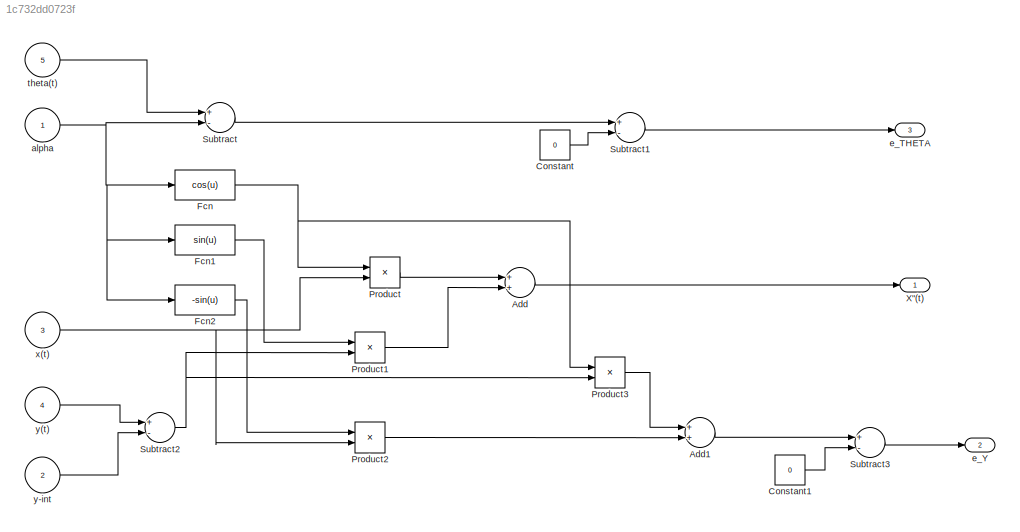
MODEL slx_1c732dd0723f
KIND model
CONFIG AbsTol = auto
CONFIG EnableMultiTasking = off
CONFIG FixedStep = auto
CONFIG MaxStep = auto
CONFIG MinStep = auto
CONFIG RelTol = 1e-3
CONFIG SampleTimeConstraint = Unconstrained
CONFIG Solver = VariableStepAuto
CONFIG SolverName = VariableStepAuto
CONFIG StartTime = 0.0
CONFIG StopTime = 10.0
BLOCK [Sum] Add
  InputSameDT = off
  OutDataTypeStr = Inherit: Inherit via internal rule
  Ports = [2, 1]
  SaturateOnIntegerOverflow = off
BLOCK [Sum] Add1
  InputSameDT = off
  OutDataTypeStr = Inherit: Inherit via internal rule
  Ports = [2, 1]
  SaturateOnIntegerOverflow = off
BLOCK [Constant] Constant
  Value = 0
BLOCK [Constant] Constant1
  Value = 0
BLOCK [Fcn] Fcn
  Expr = cos(u)
BLOCK [Fcn] Fcn1
  Expr = sin(u)
BLOCK [Fcn] Fcn2
  Expr = -sin(u)
BLOCK [Product] Product
  InputSameDT = off
  OutDataTypeStr = Inherit: Inherit via internal rule
  Ports = [2, 1]
  RndMeth = Floor
  SaturateOnIntegerOverflow = off
BLOCK [Product] Product1
  InputSameDT = off
  OutDataTypeStr = Inherit: Inherit via internal rule
  Ports = [2, 1]
  RndMeth = Floor
  SaturateOnIntegerOverflow = off
BLOCK [Product] Product2
  InputSameDT = off
  OutDataTypeStr = Inherit: Inherit via internal rule
  Ports = [2, 1]
  RndMeth = Floor
  SaturateOnIntegerOverflow = off
BLOCK [Product] Product3
  InputSameDT = off
  OutDataTypeStr = Inherit: Inherit via internal rule
  Ports = [2, 1]
  RndMeth = Floor
  SaturateOnIntegerOverflow = off
BLOCK [Sum] Subtract
  InputSameDT = off
  Inputs = +-
  OutDataTypeStr = Inherit: Inherit via internal rule
  Ports = [2, 1]
  SaturateOnIntegerOverflow = off
BLOCK [Sum] Subtract1
  InputSameDT = off
  Inputs = +-
  OutDataTypeStr = Inherit: Inherit via internal rule
  Ports = [2, 1]
  SaturateOnIntegerOverflow = off
BLOCK [Sum] Subtract2
  InputSameDT = off
  Inputs = +-
  OutDataTypeStr = Inherit: Inherit via internal rule
  Ports = [2, 1]
  SaturateOnIntegerOverflow = off
BLOCK [Sum] Subtract3
  InputSameDT = off
  Inputs = +-
  OutDataTypeStr = Inherit: Inherit via internal rule
  Ports = [2, 1]
  SaturateOnIntegerOverflow = off
BLOCK [Outport] X"(t) 
  IconDisplay = Port number
BLOCK [Inport] alpha 
  IconDisplay = Port number
BLOCK [Outport] e_THETA
  IconDisplay = Port number
  Port = 3
BLOCK [Outport] e_Y 
  IconDisplay = Port number
  Port = 2
BLOCK [Inport] theta(t) 
  IconDisplay = Port number
  Port = 5
BLOCK [Inport] x(t) 
  IconDisplay = Port number
  Port = 3
BLOCK [Inport] y(t)
  IconDisplay = Port number
  Port = 4
BLOCK [Inport] y-int 
  IconDisplay = Port number
  Port = 2
LINE Add1:1 -> Subtract3:1
LINE Add:1 -> X"(t) :1
LINE Constant1:1 -> Subtract3:2
LINE Constant:1 -> Subtract1:2
LINE Fcn1:1 -> Product1:1
LINE Fcn2:1 -> Product2:1
NET Fcn:1 -> Product3:1, Product:1
LINE Product1:1 -> Add:2
LINE Product2:1 -> Add1:2
LINE Product3:1 -> Add1:1
LINE Product:1 -> Add:1
LINE Subtract1:1 -> e_THETA:1
NET Subtract2:1 -> Product1:2, Product3:2
LINE Subtract3:1 -> e_Y :1
LINE Subtract:1 -> Subtract1:1
NET alpha :1 -> Fcn1:1, Fcn2:1, Fcn:1, Subtract:2
LINE theta(t) :1 -> Subtract:1
NET x(t) :1 -> Product2:2, Product:2
LINE y(t):1 -> Subtract2:1
LINE y-int :1 -> Subtract2:2
note: NET lines group one-source signal fan-out (src -> all destinations, sorted); 1:1 wires keep LINE
